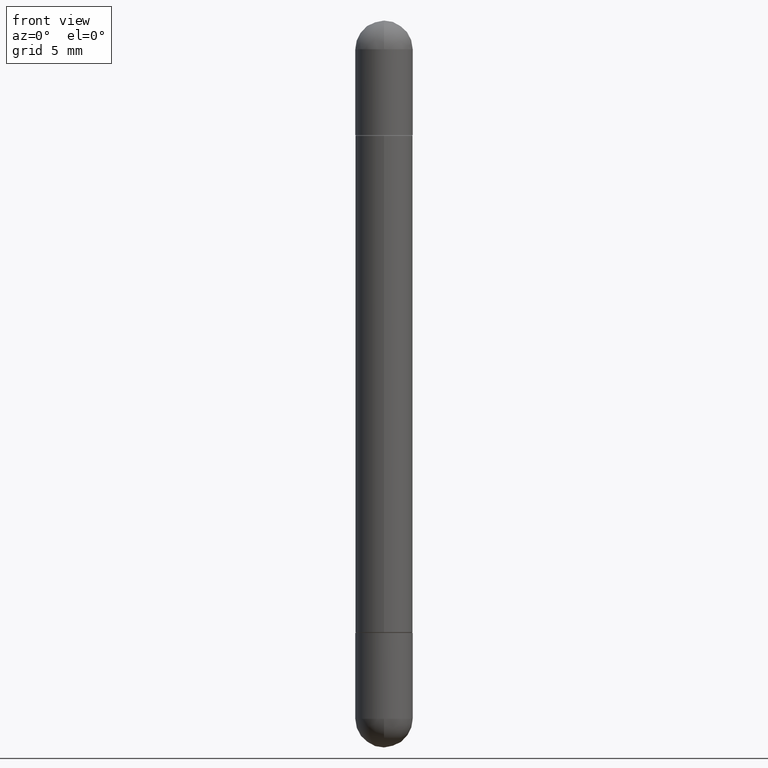
[diagram: clean part render]
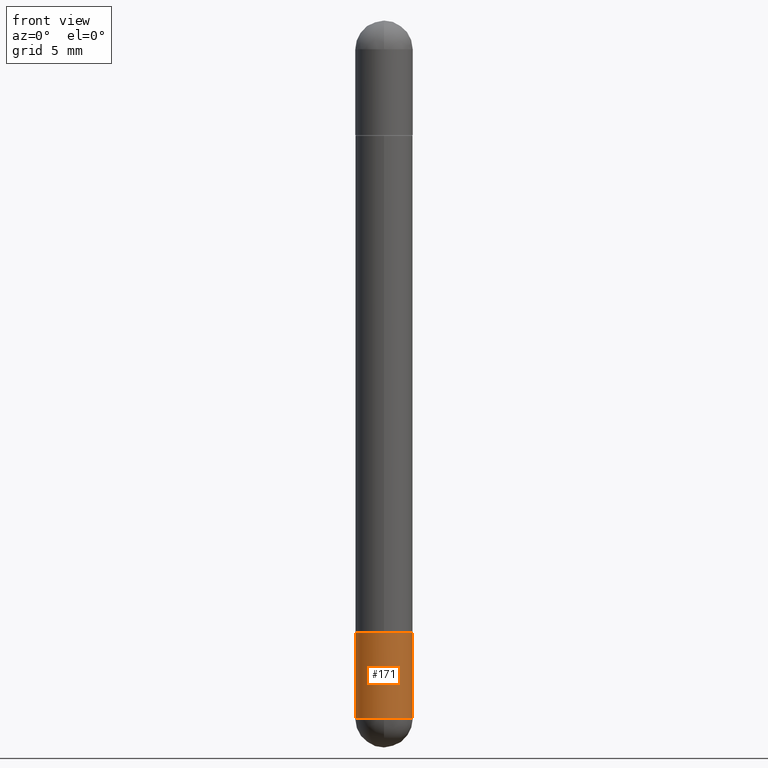
[diagram: same view with one face highlighted and labeled with its STEP entity id]
A machine part, front view. The second image highlights one B-rep face of the part: STEP entity #171.
In plain terms, the highlighted cylindrical surface (edge-blend (fillet) strip) has radius 1.4999 mm, axis along (-0, 0, 1).
Its self-contained STEP definition (entity closure, byte-faithful):
#13 = EDGE_CURVE ( 'NONE', #519, #155, #730, .T. ) ;
#28 = DIRECTION ( 'NONE',  ( -2.445468806185136597E-29, 3.491481338843145583E-15, 1.000000000000000000 ) ) ;
#35 = DIRECTION ( 'NONE',  ( -2.445468806185136597E-29, 3.491481338843145583E-15, 1.000000000000000000 ) ) ;
#71 = CARTESIAN_POINT ( 'NONE',  ( -0.05905000000000001914, -4.288599812930171320E-15, -1.437049999999999939 ) ) ;
#114 = CARTESIAN_POINT ( 'NONE',  ( 3.081046148912652946E-29, -4.398917338808479031E-15, -1.259899999999999798 ) ) ;
#118 = EDGE_CURVE ( 'NONE', #440, #336, #278, .T. ) ;
#141 = ORIENTED_EDGE ( 'NONE', *, *, #13, .F. ) ;
#142 = CARTESIAN_POINT ( 'NONE',  ( 3.514260947928350449E-29, -5.017433257984542594E-15, -1.437049999999999939 ) ) ;
#145 = DIRECTION ( 'NONE',  ( 1.000000000000000000, -6.982962677686266711E-15, 4.876176775795935793E-29 ) ) ;
#148 = VERTEX_POINT ( 'NONE', #224 ) ;
#149 = AXIS2_PLACEMENT_3D ( 'NONE', #526, #35, #145 ) ;
#155 = VERTEX_POINT ( 'NONE', #466 ) ;
#159 = DIRECTION ( 'NONE',  ( -2.445468806185136877E-29, 3.491481338843145188E-15, 1.000000000000000000 ) ) ;
#171 = ADVANCED_FACE ( 'NONE', ( #222 ), #715, .T. ) ;
#210 = ORIENTED_EDGE ( 'NONE', *, *, #681, .T. ) ;
#222 = FACE_OUTER_BOUND ( 'NONE', #699, .T. ) ;
#224 = CARTESIAN_POINT ( 'NONE',  ( 0.05905000000000001914, -4.811261284925853162E-15, -1.259899999999999798 ) ) ;
#253 = VECTOR ( 'NONE', #439, 39.37007874015748143 ) ;
#267 = AXIS2_PLACEMENT_3D ( 'NONE', #142, #342, #527 ) ;
#278 = CIRCLE ( 'NONE', #447, 0.05905000000000001914 ) ;
#309 = DIRECTION ( 'NONE',  ( 1.000000000000000000, -6.982962677686270655E-15, 0.000000000000000000 ) ) ;
#336 = VERTEX_POINT ( 'NONE', #494 ) ;
#342 = DIRECTION ( 'NONE',  ( -2.445468806185136597E-29, 3.491481338843145583E-15, 1.000000000000000000 ) ) ;
#345 = EDGE_CURVE ( 'NONE', #336, #148, #743, .T. ) ;
#383 = CIRCLE ( 'NONE', #575, 0.05905000000000001914 ) ;
#409 = CARTESIAN_POINT ( 'NONE',  ( 3.514260947928350449E-29, -5.017433257984542594E-15, -1.437049999999999939 ) ) ;
#439 = DIRECTION ( 'NONE',  ( -2.445468806185136877E-29, 3.491481338843145188E-15, 1.000000000000000000 ) ) ;
#440 = VERTEX_POINT ( 'NONE', #446 ) ;
#446 = CARTESIAN_POINT ( 'NONE',  ( -4.195754854663065087E-16, -0.05905000000000539678, -1.437049999999999716 ) ) ;
#447 = AXIS2_PLACEMENT_3D ( 'NONE', #409, #28, #725 ) ;
#466 = CARTESIAN_POINT ( 'NONE',  ( -0.05905000000000001914, -4.288599812930171320E-15, -1.259899999999999798 ) ) ;
#494 = CARTESIAN_POINT ( 'NONE',  ( 0.05905000000000001914, -5.120519244513884944E-15, -1.437049999999999939 ) ) ;
#519 = VERTEX_POINT ( 'NONE', #71 ) ;
#526 = CARTESIAN_POINT ( 'NONE',  ( 0.000000000000000000, 0.000000000000000000, 0.000000000000000000 ) ) ;
#527 = DIRECTION ( 'NONE',  ( 1.000000000000000000, -6.982962677686270655E-15, 0.000000000000000000 ) ) ;
#539 = ORIENTED_EDGE ( 'NONE', *, *, #802, .F. ) ;
#559 = CARTESIAN_POINT ( 'NONE',  ( 0.05905000000000001914, -4.123439461173741806E-16, 2.879382386107500921E-30 ) ) ;
#575 = AXIS2_PLACEMENT_3D ( 'NONE', #114, #741, #309 ) ;
#669 = ORIENTED_EDGE ( 'NONE', *, *, #118, .T. ) ;
#681 = EDGE_CURVE ( 'NONE', #519, #440, #709, .T. ) ;
#699 = EDGE_LOOP ( 'NONE', ( #141, #210, #669, #764, #539 ) ) ;
#709 = CIRCLE ( 'NONE', #267, 0.05905000000000001914 ) ;
#715 = CYLINDRICAL_SURFACE ( 'NONE', #149, 0.05905000000000001914 ) ;
#720 = VECTOR ( 'NONE', #159, 39.37007874015748143 ) ;
#725 = DIRECTION ( 'NONE',  ( 1.000000000000000000, -6.982962677686270655E-15, 0.000000000000000000 ) ) ;
#730 = LINE ( 'NONE', #740, #720 ) ;
#740 = CARTESIAN_POINT ( 'NONE',  ( -0.05905000000000001914, 4.195754854663392958E-16, -2.904631170795522943E-30 ) ) ;
#741 = DIRECTION ( 'NONE',  ( -2.445468806185136597E-29, 3.491481338843145583E-15, 1.000000000000000000 ) ) ;
#743 = LINE ( 'NONE', #559, #253 ) ;
#764 = ORIENTED_EDGE ( 'NONE', *, *, #345, .T. ) ;
#802 = EDGE_CURVE ( 'NONE', #155, #148, #383, .T. ) ;